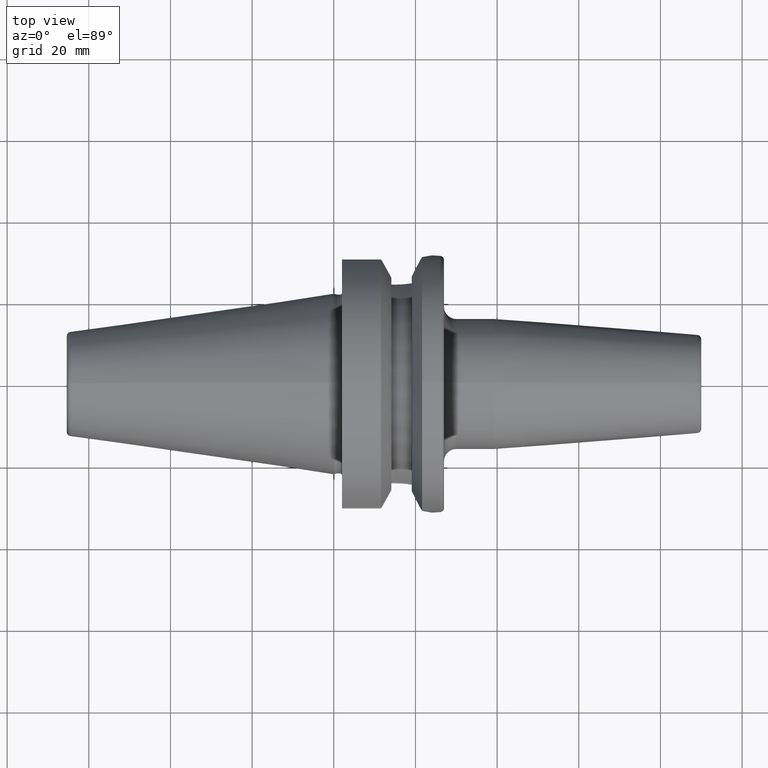
[diagram: clean part render]
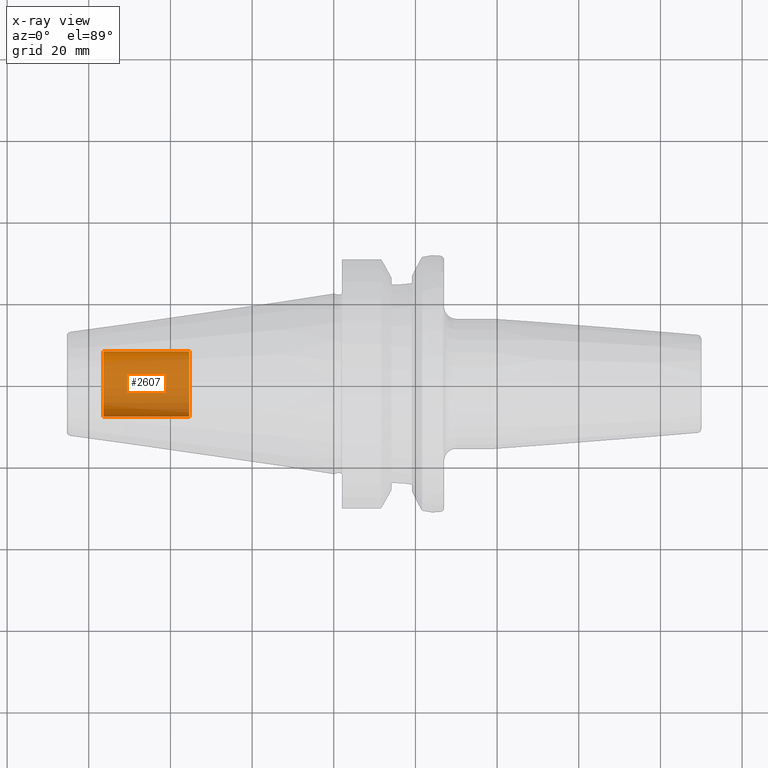
[diagram: x-ray — body ghosted, one internal face saturated and labeled with its STEP entity id]
A machine part, top view, then the same camera in x-ray: the body is ghosted and one INTERNAL B-rep face — a face not visible from any outside direction — is saturated and labeled: STEP entity #2607.
In plain terms, the highlighted cylindrical surface (edge-blend (fillet) strip) has radius 8 mm, axis along (-1, 0, 0).
Its self-contained STEP definition (entity closure, byte-faithful):
#2542=CARTESIAN_POINT('',(-5.64E1,0.E0,0.E0));
#2543=DIRECTION('',(1.E0,0.E0,0.E0));
#2544=DIRECTION('',(0.E0,-1.E0,0.E0));
#2545=AXIS2_PLACEMENT_3D('',#2542,#2543,#2544);
#2552=DIRECTION('',(1.E0,0.E0,0.E0));
#2553=VECTOR('',#2552,2.1E1);
#2554=CARTESIAN_POINT('',(-5.64E1,-8.E0,0.E0));
#2555=LINE('',#2554,#2553);
#2556=DIRECTION('',(1.E0,0.E0,0.E0));
#2557=VECTOR('',#2556,2.1E1);
#2558=CARTESIAN_POINT('',(-5.64E1,8.E0,0.E0));
#2559=LINE('',#2558,#2557);
#2565=CARTESIAN_POINT('',(-3.54E1,0.E0,0.E0));
#2566=DIRECTION('',(-1.E0,0.E0,0.E0));
#2567=DIRECTION('',(0.E0,1.E0,0.E0));
#2568=AXIS2_PLACEMENT_3D('',#2565,#2566,#2567);
#2580=CARTESIAN_POINT('',(-3.54E1,8.E0,0.E0));
#2581=CARTESIAN_POINT('',(-3.54E1,-8.E0,0.E0));
#2582=VERTEX_POINT('',#2580);
#2583=VERTEX_POINT('',#2581);
#2584=CARTESIAN_POINT('',(-5.64E1,8.E0,0.E0));
#2585=CARTESIAN_POINT('',(-5.64E1,-8.E0,0.E0));
#2586=VERTEX_POINT('',#2584);
#2587=VERTEX_POINT('',#2585);
#2592=CARTESIAN_POINT('',(-1.373367445015E1,0.E0,0.E0));
#2593=DIRECTION('',(-1.E0,0.E0,0.E0));
#2594=DIRECTION('',(0.E0,1.E0,0.E0));
#2595=AXIS2_PLACEMENT_3D('',#2592,#2593,#2594);
#2596=CYLINDRICAL_SURFACE('',#2595,8.E0);
#2598=ORIENTED_EDGE('',*,*,#2597,.T.);
#2600=ORIENTED_EDGE('',*,*,#2599,.T.);
#2602=ORIENTED_EDGE('',*,*,#2601,.T.);
#2604=ORIENTED_EDGE('',*,*,#2603,.F.);
#2605=EDGE_LOOP('',(#2598,#2600,#2602,#2604));
#2606=FACE_OUTER_BOUND('',#2605,.F.);
#2607=ADVANCED_FACE('',(#2606),#2596,.F.);
#2546=CIRCLE('',#2545,8.E0);
#2569=CIRCLE('',#2568,8.E0);
#2597=EDGE_CURVE('',#2587,#2586,#2546,.T.);
#2599=EDGE_CURVE('',#2586,#2582,#2559,.T.);
#2601=EDGE_CURVE('',#2582,#2583,#2569,.T.);
#2603=EDGE_CURVE('',#2587,#2583,#2555,.T.);